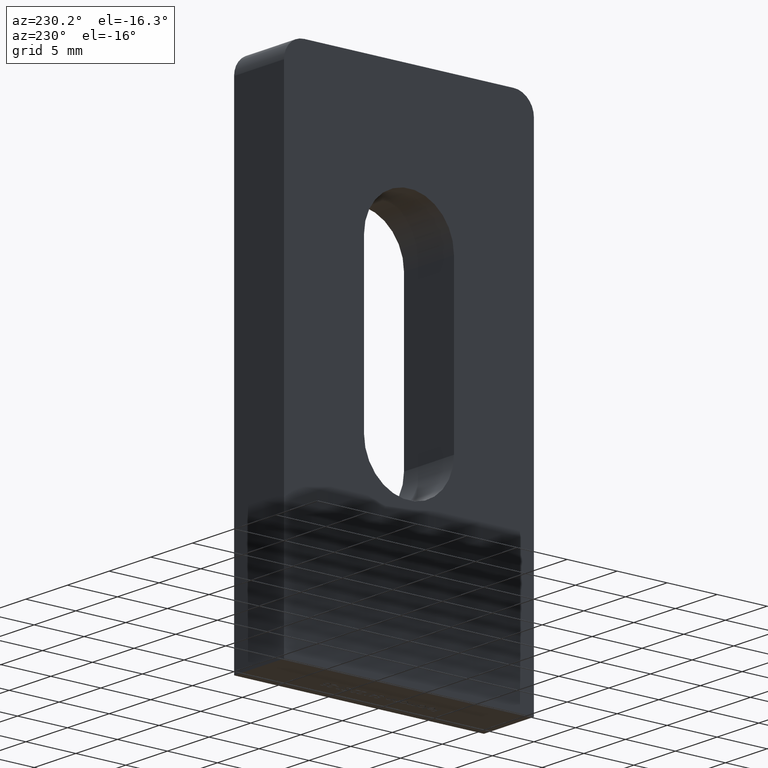
[diagram: clean part render]
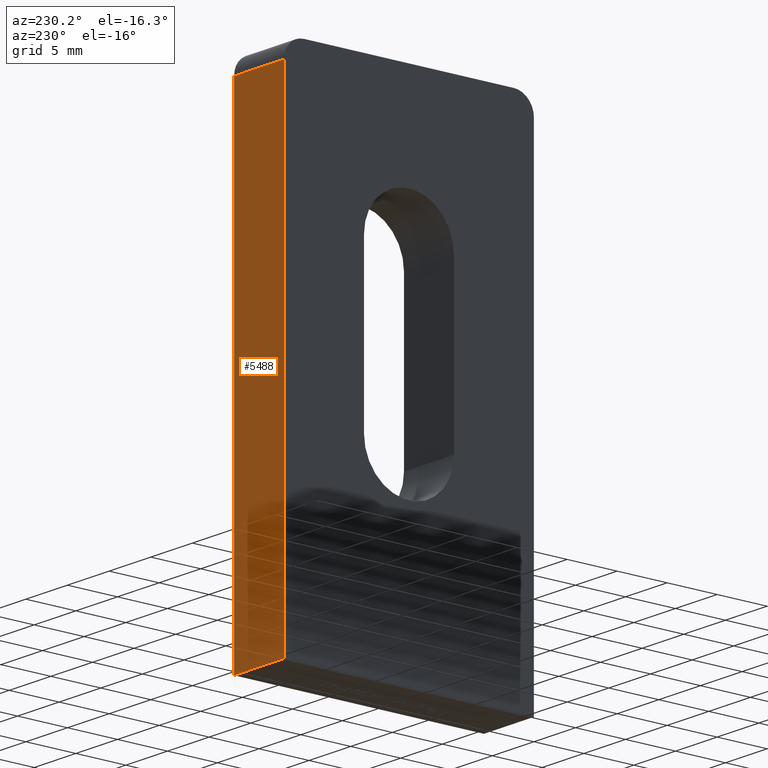
[diagram: same view with one face highlighted and labeled with its STEP entity id]
A machine part, auxiliary view. The second image highlights one B-rep face of the part: STEP entity #5488.
In plain terms, the highlighted planar face has unit normal (0, -1, 0).
Its self-contained STEP definition (entity closure, byte-faithful):
#229 = PLANE ( 'NONE',  #7822 ) ;
#634 = CARTESIAN_POINT ( 'NONE',  ( -3.000000000000000000, 12.50000000000000000, 48.00000000000000000 ) ) ;
#848 = VECTOR ( 'NONE', #10096, 1000.000000000000000 ) ;
#925 = EDGE_LOOP ( 'NONE', ( #2246, #3133, #5718, #10104 ) ) ;
#1178 = DIRECTION ( 'NONE',  ( 0.000000000000000000, -1.000000000000000000, 0.000000000000000000 ) ) ;
#1268 = VERTEX_POINT ( 'NONE', #2626 ) ;
#1608 = VECTOR ( 'NONE', #6066, 1000.000000000000000 ) ;
#2133 = DIRECTION ( 'NONE',  ( 0.000000000000000000, -0.000000000000000000, -1.000000000000000000 ) ) ;
#2246 = ORIENTED_EDGE ( 'NONE', *, *, #4613, .T. ) ;
#2626 = CARTESIAN_POINT ( 'NONE',  ( 3.000000000000000000, 12.50000000000000000, 48.00000000000000000 ) ) ;
#3133 = ORIENTED_EDGE ( 'NONE', *, *, #9661, .T. ) ;
#3191 = CARTESIAN_POINT ( 'NONE',  ( 3.000000000000000000, 12.50000000000000000, 48.00000000000000000 ) ) ;
#3638 = CARTESIAN_POINT ( 'NONE',  ( 3.000000000000000000, 12.50000000000000000, 50.00000000000000000 ) ) ;
#3775 = VECTOR ( 'NONE', #10145, 1000.000000000000000 ) ;
#4036 = EDGE_CURVE ( 'NONE', #10819, #1268, #9073, .T. ) ;
#4437 = LINE ( 'NONE', #8009, #848 ) ;
#4613 = EDGE_CURVE ( 'NONE', #9577, #4781, #4437, .T. ) ;
#4781 = VERTEX_POINT ( 'NONE', #634 ) ;
#5488 = ADVANCED_FACE ( 'NONE', ( #8186 ), #229, .F. ) ;
#5718 = ORIENTED_EDGE ( 'NONE', *, *, #4036, .F. ) ;
#6066 = DIRECTION ( 'NONE',  ( -1.000000000000000000, -0.000000000000000000, -0.000000000000000000 ) ) ;
#7822 = AXIS2_PLACEMENT_3D ( 'NONE', #10072, #1178, #2133 ) ;
#7957 = LINE ( 'NONE', #12822, #1608 ) ;
#8009 = CARTESIAN_POINT ( 'NONE',  ( -3.000000000000000000, 12.50000000000000000, 50.00000000000000000 ) ) ;
#8186 = FACE_OUTER_BOUND ( 'NONE', #925, .T. ) ;
#8310 = VECTOR ( 'NONE', #12438, 1000.000000000000000 ) ;
#8434 = LINE ( 'NONE', #3191, #3775 ) ;
#9073 = LINE ( 'NONE', #3638, #8310 ) ;
#9577 = VERTEX_POINT ( 'NONE', #12029 ) ;
#9661 = EDGE_CURVE ( 'NONE', #4781, #1268, #8434, .T. ) ;
#10072 = CARTESIAN_POINT ( 'NONE',  ( 3.000000000000000000, 12.50000000000000000, 50.00000000000000000 ) ) ;
#10096 = DIRECTION ( 'NONE',  ( -0.000000000000000000, -0.000000000000000000, 1.000000000000000000 ) ) ;
#10104 = ORIENTED_EDGE ( 'NONE', *, *, #10499, .T. ) ;
#10145 = DIRECTION ( 'NONE',  ( 1.000000000000000000, -0.000000000000000000, -0.000000000000000000 ) ) ;
#10499 = EDGE_CURVE ( 'NONE', #10819, #9577, #7957, .T. ) ;
#10792 = CARTESIAN_POINT ( 'NONE',  ( 3.000000000000000000, 12.50000000000000000, -3.367778697655221307E-15 ) ) ;
#10819 = VERTEX_POINT ( 'NONE', #10792 ) ;
#12029 = CARTESIAN_POINT ( 'NONE',  ( -3.000000000000000000, 12.50000000000000000, -3.367778697655221307E-15 ) ) ;
#12438 = DIRECTION ( 'NONE',  ( -0.000000000000000000, -0.000000000000000000, 1.000000000000000000 ) ) ;
#12822 = CARTESIAN_POINT ( 'NONE',  ( 3.000000000000000000, 12.50000000000000000, -3.367778697655221307E-15 ) ) ;